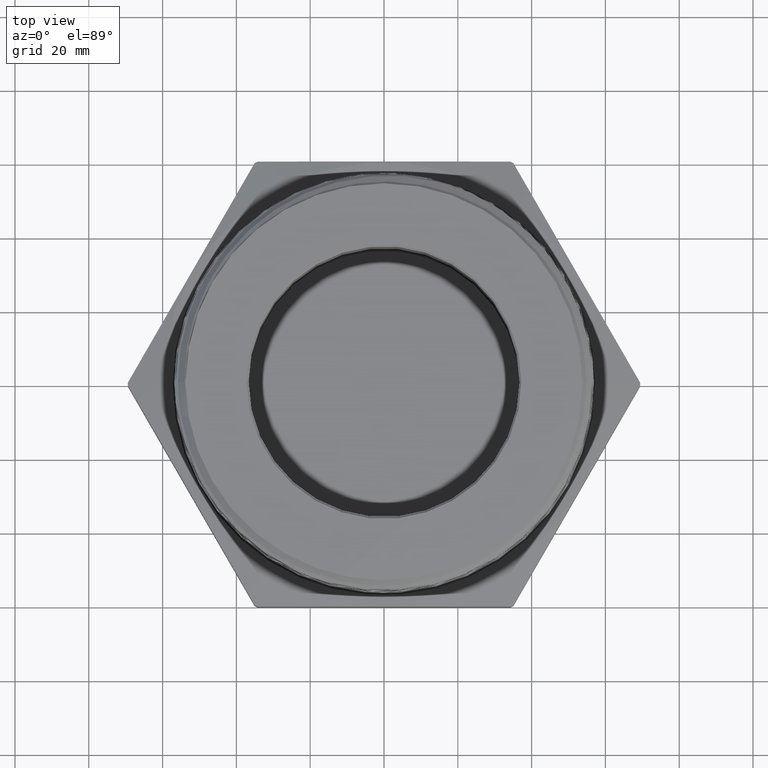
[diagram: clean part render]
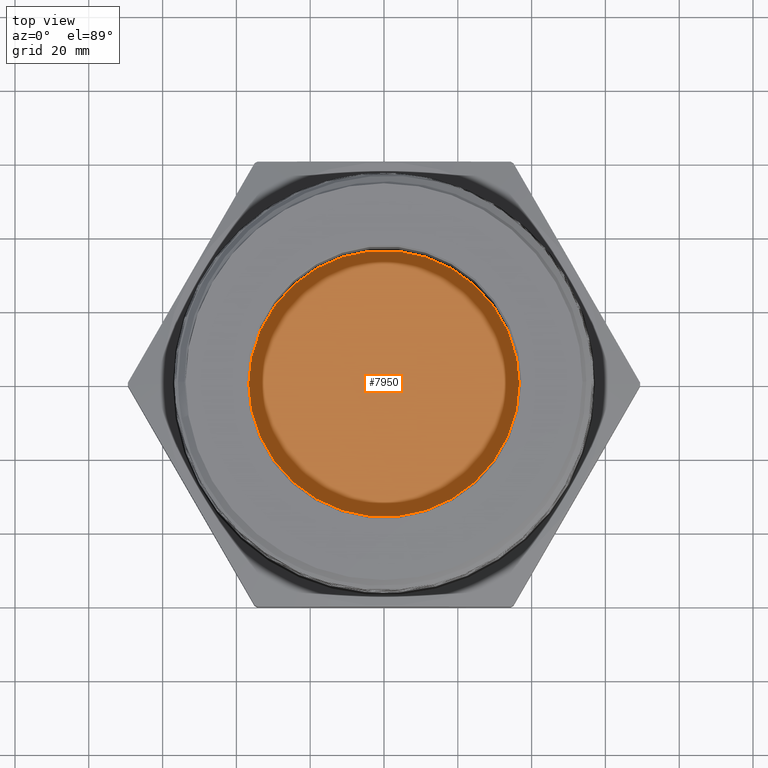
[diagram: same view with one face highlighted and labeled with its STEP entity id]
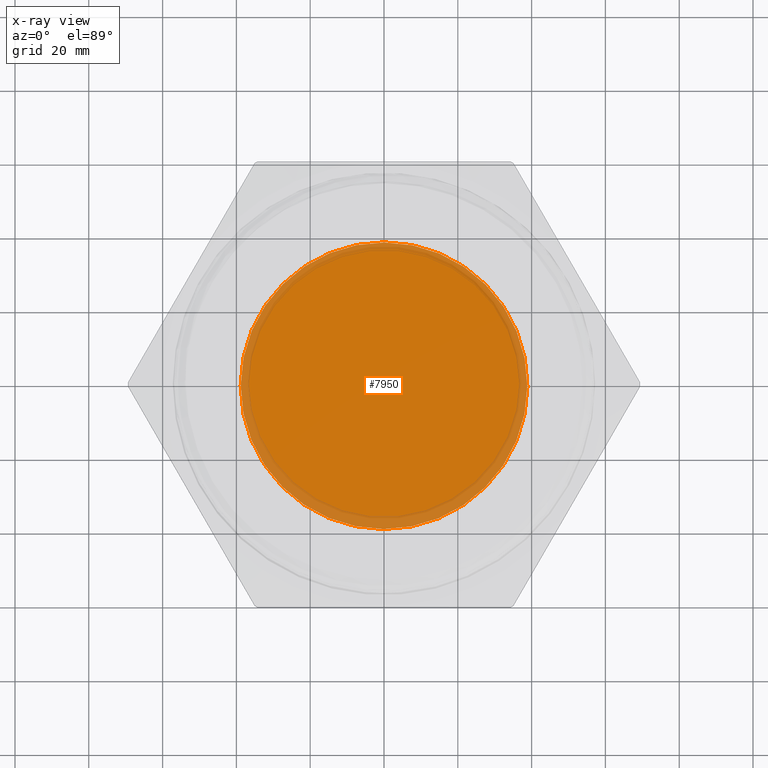
[diagram: x-ray of the same camera — body ghosted, the highlighted face saturated]
A machine part, top view. The second image highlights one B-rep face of the part: STEP entity #7950.
The next image is the same camera in x-ray: the body ghosted, the highlighted face saturated — about 12% of this face is hidden behind the body in this view.
In plain terms, the highlighted planar face has unit normal (0, -0, -1).
Its self-contained STEP definition (entity closure, byte-faithful):
#1714 = CARTESIAN_POINT ( 'NONE',  ( 1.645680053937865300, -0.1164497935006339900, 0.0000000000000000000 ) ) ;
#1723 = CARTESIAN_POINT ( 'NONE',  ( -1.412319946062096500, -0.1164497935006337900, 0.0000000000000000000 ) ) ;
#1983 = EDGE_LOOP ( 'NONE', ( #2146, #2145 ) ) ;
#2089 = VERTEX_POINT ( 'NONE', #1714 ) ;
#2145 = ORIENTED_EDGE ( 'NONE', *, *, #8230, .T. ) ;
#2146 = ORIENTED_EDGE ( 'NONE', *, *, #8242, .T. ) ;
#2180 = VERTEX_POINT ( 'NONE', #1723 ) ;
#2646 = CIRCLE ( 'NONE', #2767, 1.528999999999980800 ) ;
#2674 = CIRCLE ( 'NONE', #2774, 1.528999999999980800 ) ;
#2715 = AXIS2_PLACEMENT_3D ( 'NONE', #5824, #5830, #5831 ) ;
#2767 = AXIS2_PLACEMENT_3D ( 'NONE', #3688, #3689, #3690 ) ;
#2774 = AXIS2_PLACEMENT_3D ( 'NONE', #3720, #3721, #3722 ) ;
#2941 = FACE_OUTER_BOUND ( 'NONE', #1983, .T. ) ;
#3688 = CARTESIAN_POINT ( 'NONE',  ( 0.1166800539378845000, -0.1164497935006339900, 0.0000000000000000000 ) ) ;
#3689 = DIRECTION ( 'NONE',  ( 0.0000000000000000000, -0.0000000000000000000, -1.000000000000000000 ) ) ;
#3690 = DIRECTION ( 'NONE',  ( 1.000000000000000000, 0.0000000000000000000, 0.0000000000000000000 ) ) ;
#3720 = CARTESIAN_POINT ( 'NONE',  ( 0.1166800539378845000, -0.1164497935006339900, 0.0000000000000000000 ) ) ;
#3721 = DIRECTION ( 'NONE',  ( 0.0000000000000000000, -0.0000000000000000000, -1.000000000000000000 ) ) ;
#3722 = DIRECTION ( 'NONE',  ( 1.000000000000000000, 0.0000000000000000000, 0.0000000000000000000 ) ) ;
#5822 = PLANE ( 'NONE',  #2715 ) ;
#5824 = CARTESIAN_POINT ( 'NONE',  ( 0.0000000000000000000, 0.0000000000000000000, 0.0000000000000000000 ) ) ;
#5830 = DIRECTION ( 'NONE',  ( -0.0000000000000000000, 0.0000000000000000000, 1.000000000000000000 ) ) ;
#5831 = DIRECTION ( 'NONE',  ( 1.000000000000000000, 0.0000000000000000000, 0.0000000000000000000 ) ) ;
#7950 = ADVANCED_FACE ( 'NONE', ( #2941 ), #5822, .F. ) ;
#8230 = EDGE_CURVE ( 'NONE', #2180, #2089, #2646, .T. ) ;
#8242 = EDGE_CURVE ( 'NONE', #2089, #2180, #2674, .T. ) ;